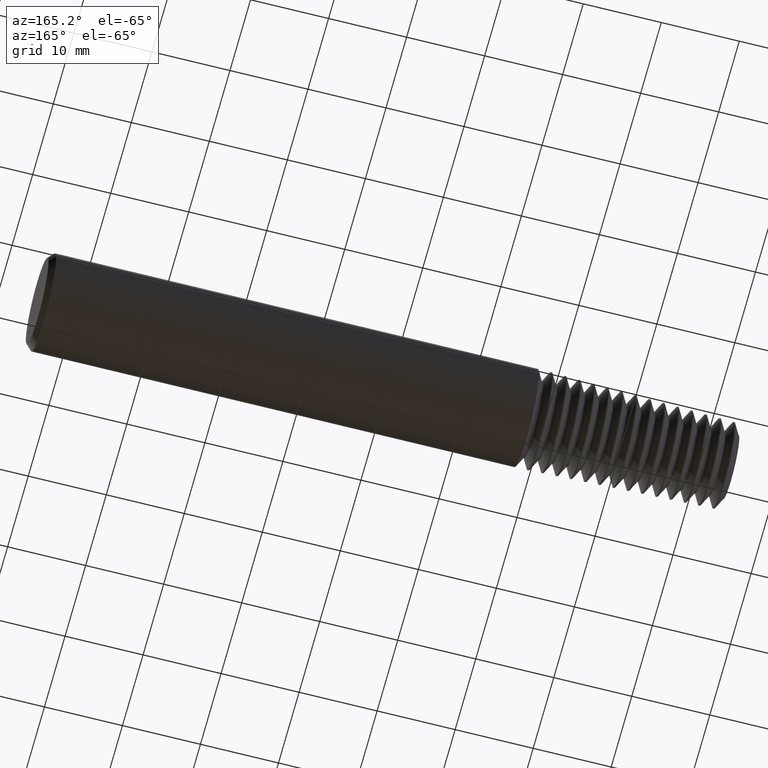
[diagram: clean part render]
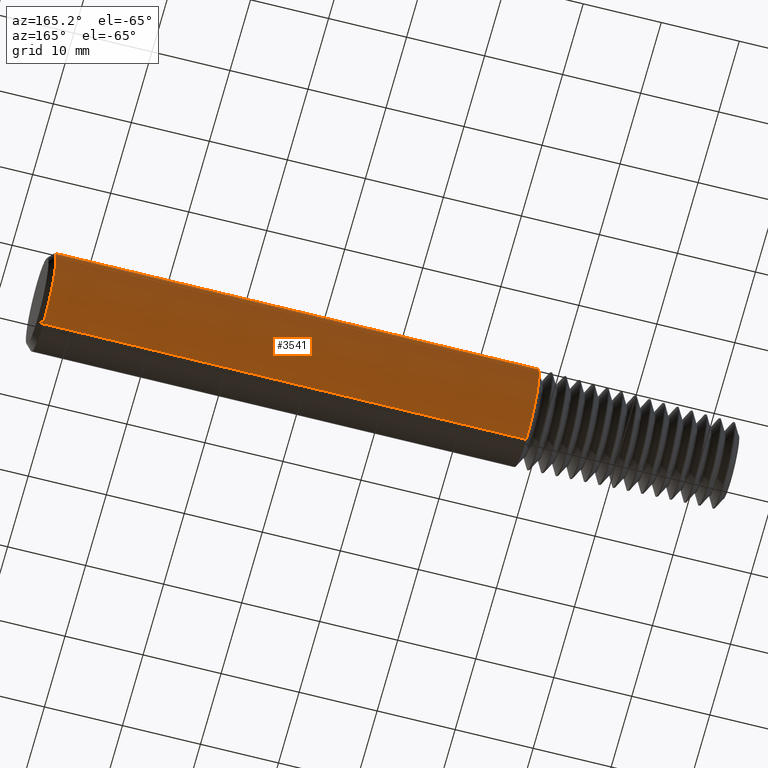
[diagram: same view with one face highlighted and labeled with its STEP entity id]
A machine part, auxiliary view. The second image highlights one B-rep face of the part: STEP entity #3541.
In plain terms, the highlighted cylindrical surface (partial cylindrical patch) has radius 6.2688 mm, axis along (-1, -0, -0).
Its self-contained STEP definition (entity closure, byte-faithful):
#70 = DIRECTION ( 'NONE',  ( -1.000000000000000000, -0.000000000000000000, -0.000000000000000000 ) ) ;
#90 = ORIENTED_EDGE ( 'NONE', *, *, #1823, .T. ) ;
#102 = CARTESIAN_POINT ( 'NONE',  ( 2.495000000000000107, 0.000000000000000000, 0.2468013999999999764 ) ) ;
#332 = CARTESIAN_POINT ( 'NONE',  ( 0.05715482854455054135, 0.000000000000000000, 0.2468013999999999764 ) ) ;
#373 = VECTOR ( 'NONE', #70, 39.37007874015748143 ) ;
#411 = EDGE_LOOP ( 'NONE', ( #90, #1129, #2483, #1159 ) ) ;
#602 = VERTEX_POINT ( 'NONE', #332 ) ;
#686 = LINE ( 'NONE', #1569, #1777 ) ;
#687 = CYLINDRICAL_SURFACE ( 'NONE', #2800, 0.2468013999999999764 ) ;
#777 = CARTESIAN_POINT ( 'NONE',  ( 2.495000000000000107, 0.000000000000000000, 0.000000000000000000 ) ) ;
#938 = CIRCLE ( 'NONE', #2688, 0.2468013999999999764 ) ;
#1020 = AXIS2_PLACEMENT_3D ( 'NONE', #1466, #2848, #3781 ) ;
#1027 = LINE ( 'NONE', #2180, #373 ) ;
#1129 = ORIENTED_EDGE ( 'NONE', *, *, #1650, .T. ) ;
#1159 = ORIENTED_EDGE ( 'NONE', *, *, #2897, .F. ) ;
#1466 = CARTESIAN_POINT ( 'NONE',  ( 0.05715482854455054135, 0.000000000000000000, 0.000000000000000000 ) ) ;
#1569 = CARTESIAN_POINT ( 'NONE',  ( 0.000000000000000000, 0.000000000000000000, 0.2468013999999999764 ) ) ;
#1650 = EDGE_CURVE ( 'NONE', #2697, #2970, #1027, .T. ) ;
#1777 = VECTOR ( 'NONE', #3175, 39.37007874015748143 ) ;
#1823 = EDGE_CURVE ( 'NONE', #2134, #2697, #938, .T. ) ;
#1934 = DIRECTION ( 'NONE',  ( -1.000000000000000000, -0.000000000000000000, -0.000000000000000000 ) ) ;
#2134 = VERTEX_POINT ( 'NONE', #102 ) ;
#2180 = CARTESIAN_POINT ( 'NONE',  ( 0.000000000000000000, 3.022445445350855914E-17, -0.2468013999999999764 ) ) ;
#2258 = CARTESIAN_POINT ( 'NONE',  ( 0.05715482854455054135, 3.022445445350855914E-17, -0.2468013999999999764 ) ) ;
#2368 = EDGE_CURVE ( 'NONE', #602, #2970, #2403, .T. ) ;
#2403 = CIRCLE ( 'NONE', #1020, 0.2468013999999999764 ) ;
#2417 = CARTESIAN_POINT ( 'NONE',  ( 0.000000000000000000, 0.000000000000000000, 0.000000000000000000 ) ) ;
#2446 = CARTESIAN_POINT ( 'NONE',  ( 2.495000000000000107, 3.022445445350855914E-17, -0.2468013999999999764 ) ) ;
#2483 = ORIENTED_EDGE ( 'NONE', *, *, #2368, .F. ) ;
#2688 = AXIS2_PLACEMENT_3D ( 'NONE', #777, #1934, #2797 ) ;
#2697 = VERTEX_POINT ( 'NONE', #2446 ) ;
#2763 = DIRECTION ( 'NONE',  ( -1.000000000000000000, -0.000000000000000000, -0.000000000000000000 ) ) ;
#2797 = DIRECTION ( 'NONE',  ( 0.000000000000000000, 0.000000000000000000, -1.000000000000000000 ) ) ;
#2800 = AXIS2_PLACEMENT_3D ( 'NONE', #2417, #2763, #3606 ) ;
#2848 = DIRECTION ( 'NONE',  ( -1.000000000000000000, 0.000000000000000000, 0.000000000000000000 ) ) ;
#2897 = EDGE_CURVE ( 'NONE', #2134, #602, #686, .T. ) ;
#2970 = VERTEX_POINT ( 'NONE', #2258 ) ;
#3047 = FACE_OUTER_BOUND ( 'NONE', #411, .T. ) ;
#3175 = DIRECTION ( 'NONE',  ( -1.000000000000000000, -0.000000000000000000, -0.000000000000000000 ) ) ;
#3541 = ADVANCED_FACE ( 'NONE', ( #3047 ), #687, .T. ) ;
#3606 = DIRECTION ( 'NONE',  ( 0.000000000000000000, 0.000000000000000000, 1.000000000000000000 ) ) ;
#3781 = DIRECTION ( 'NONE',  ( 0.000000000000000000, 0.000000000000000000, -1.000000000000000000 ) ) ;